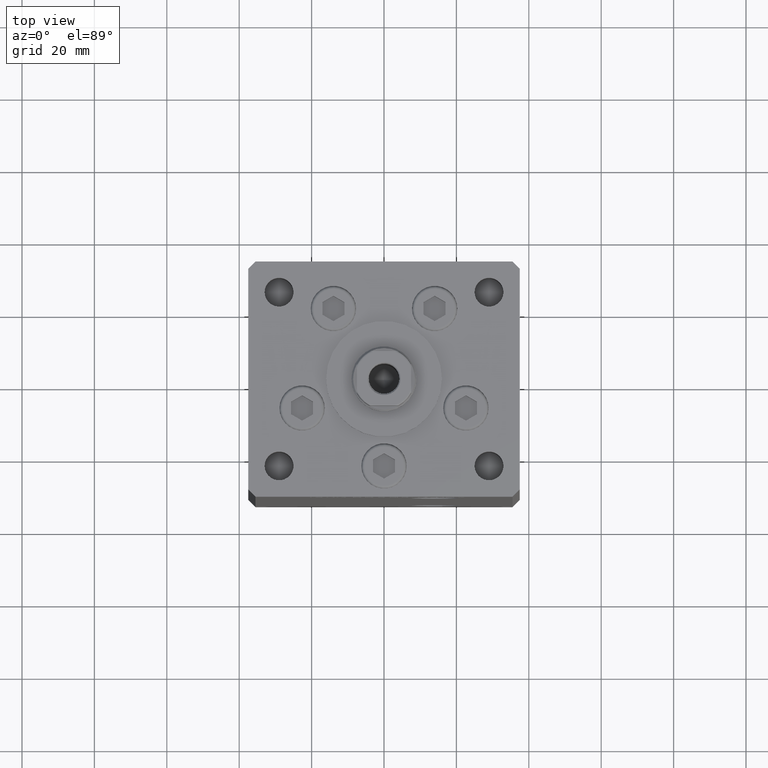
[diagram: clean part render]
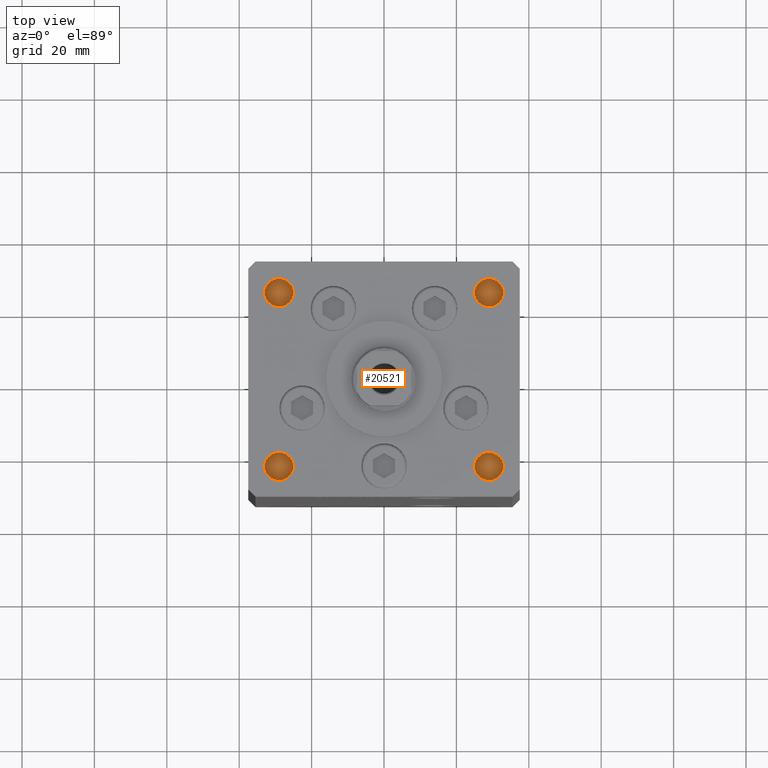
[diagram: same view with one face highlighted and labeled with its STEP entity id]
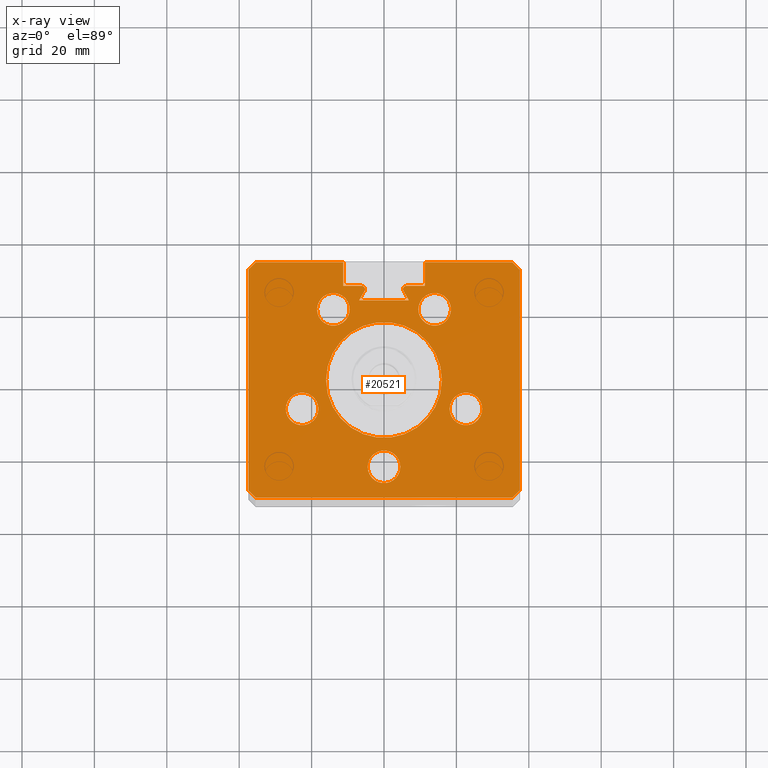
[diagram: x-ray of the same camera — body ghosted, the highlighted face saturated]
A machine part, top view. The second image highlights one B-rep face of the part: STEP entity #20521.
The next image is the same camera in x-ray: the body ghosted, the highlighted face saturated — about 0% of this face is hidden behind the body in this view.
In plain terms, the highlighted planar face has unit normal (0, 0, -1).
Its self-contained STEP definition (entity closure, byte-faithful):
#53 = DIRECTION ( 'NONE',  ( 1.000000000000000000, 0.000000000000000000, 0.000000000000000000 ) ) ;
#482 = DIRECTION ( 'NONE',  ( 1.000000000000000000, 0.000000000000000000, 0.000000000000000000 ) ) ;
#627 = LINE ( 'NONE', #16720, #37494 ) ;
#664 = ORIENTED_EDGE ( 'NONE', *, *, #14087, .F. ) ;
#794 = EDGE_CURVE ( 'NONE', #24559, #36442, #5708, .T. ) ;
#1055 = VERTEX_POINT ( 'NONE', #21488 ) ;
#1249 = EDGE_CURVE ( 'NONE', #27479, #21317, #3509, .T. ) ;
#1281 = DIRECTION ( 'NONE',  ( 1.000000000000000000, 0.000000000000000000, 0.000000000000000000 ) ) ;
#1651 = DIRECTION ( 'NONE',  ( 0.000000000000000000, 0.000000000000000000, -1.000000000000000000 ) ) ;
#1676 = FACE_BOUND ( 'NONE', #20004, .T. ) ;
#1789 = DIRECTION ( 'NONE',  ( -2.275047181608927644E-16, -1.000000000000000000, 0.000000000000000000 ) ) ;
#1837 = VECTOR ( 'NONE', #1789, 1000.000000000000000 ) ;
#1921 = VECTOR ( 'NONE', #41273, 1000.000000000000000 ) ;
#1927 = EDGE_CURVE ( 'NONE', #24559, #16770, #36311, .T. ) ;
#1969 = CARTESIAN_POINT ( 'NONE',  ( -35.49999999999999289, -32.50000000000000000, 136.0000000000000000 ) ) ;
#2026 = CIRCLE ( 'NONE', #45903, 4.499999999999997335 ) ;
#2070 = DIRECTION ( 'NONE',  ( -1.000000000000000000, 0.000000000000000000, 0.000000000000000000 ) ) ;
#2204 = FACE_BOUND ( 'NONE', #18133, .T. ) ;
#2223 = DIRECTION ( 'NONE',  ( 1.000000000000000000, 0.000000000000000000, 0.000000000000000000 ) ) ;
#2573 = DIRECTION ( 'NONE',  ( -0.7071067811865474617, -0.7071067811865474617, 0.000000000000000000 ) ) ;
#2605 = ORIENTED_EDGE ( 'NONE', *, *, #1927, .F. ) ;
#3509 = LINE ( 'NONE', #19870, #17910 ) ;
#3834 = CARTESIAN_POINT ( 'NONE',  ( -6.183333333334001480, 25.06666666666599141, 136.0000000000000000 ) ) ;
#3871 = LINE ( 'NONE', #16530, #19425 ) ;
#3873 = CARTESIAN_POINT ( 'NONE',  ( -6.876153656360466826, 21.99999999999986855, 136.0000000000000000 ) ) ;
#3987 = CARTESIAN_POINT ( 'NONE',  ( 11.24999999999999467, 32.49999999999999289, 136.0000000000000000 ) ) ;
#3990 = CARTESIAN_POINT ( 'NONE',  ( 18.12741699796951877, -8.000000000000000000, 136.0000000000000000 ) ) ;
#4031 = VERTEX_POINT ( 'NONE', #41045 ) ;
#4173 = DIRECTION ( 'NONE',  ( 0.000000000000000000, 0.000000000000000000, 1.000000000000000000 ) ) ;
#4209 = AXIS2_PLACEMENT_3D ( 'NONE', #38007, #50640, #50389 ) ;
#4671 = CARTESIAN_POINT ( 'NONE',  ( 18.49106857963322526, 19.50000000000000000, 136.0000000000000000 ) ) ;
#4936 = AXIS2_PLACEMENT_3D ( 'NONE', #14596, #46550, #5635 ) ;
#5047 = VERTEX_POINT ( 'NONE', #45756 ) ;
#5135 = DIRECTION ( 'NONE',  ( 1.000000000000000000, 0.000000000000000000, 0.000000000000000000 ) ) ;
#5179 = CIRCLE ( 'NONE', #32982, 16.00000000000000000 ) ;
#5635 = DIRECTION ( 'NONE',  ( -1.000000000000000000, 0.000000000000000000, -0.000000000000000000 ) ) ;
#5708 = LINE ( 'NONE', #9663, #11959 ) ;
#5963 = AXIS2_PLACEMENT_3D ( 'NONE', #51759, #15343, #50982 ) ;
#5988 = EDGE_CURVE ( 'NONE', #27479, #6865, #37061, .T. ) ;
#6287 = DIRECTION ( 'NONE',  ( -1.000000000000000000, 0.000000000000000000, 0.000000000000000000 ) ) ;
#6408 = FACE_BOUND ( 'NONE', #34272, .T. ) ;
#6469 = AXIS2_PLACEMENT_3D ( 'NONE', #15464, #7792, #5135 ) ;
#6517 = CARTESIAN_POINT ( 'NONE',  ( 37.49999999999999289, -30.50000000000000000, 136.0000000000000000 ) ) ;
#6636 = CARTESIAN_POINT ( 'NONE',  ( -6.183333333334001480, 25.06666666666599141, 136.0000000000000000 ) ) ;
#6865 = VERTEX_POINT ( 'NONE', #38379 ) ;
#6954 = VECTOR ( 'NONE', #15970, 1000.000000000000000 ) ;
#7187 = CARTESIAN_POINT ( 'NONE',  ( 35.49999999999999289, -32.50000000000000000, 136.0000000000000000 ) ) ;
#7264 = EDGE_CURVE ( 'NONE', #35152, #50964, #13794, .T. ) ;
#7512 = AXIS2_PLACEMENT_3D ( 'NONE', #33974, #33103, #48948 ) ;
#7694 = DIRECTION ( 'NONE',  ( 0.000000000000000000, 0.000000000000000000, 1.000000000000000000 ) ) ;
#7697 = DIRECTION ( 'NONE',  ( 1.000000000000000000, 0.000000000000000000, 0.000000000000000000 ) ) ;
#7745 = DIRECTION ( 'NONE',  ( 0.000000000000000000, 1.000000000000000000, 0.000000000000000000 ) ) ;
#7767 = DIRECTION ( 'NONE',  ( 1.000000000000000000, 0.000000000000000000, 0.000000000000000000 ) ) ;
#7792 = DIRECTION ( 'NONE',  ( 0.000000000000000000, 0.000000000000000000, 1.000000000000000000 ) ) ;
#7915 = EDGE_CURVE ( 'NONE', #9230, #25447, #23008, .T. ) ;
#8044 = AXIS2_PLACEMENT_3D ( 'NONE', #39928, #7694, #53 ) ;
#8064 = EDGE_CURVE ( 'NONE', #36442, #42253, #24193, .T. ) ;
#8217 = CARTESIAN_POINT ( 'NONE',  ( 22.62741699796951877, -8.000000000000000000, 136.0000000000000000 ) ) ;
#8345 = DIRECTION ( 'NONE',  ( -1.000000000000000000, 0.000000000000000000, 0.000000000000000000 ) ) ;
#8447 = CIRCLE ( 'NONE', #26985, 0.9333333333340008142 ) ;
#8715 = CARTESIAN_POINT ( 'NONE',  ( 22.62741699796951877, -8.000000000000000000, 136.0000000000000000 ) ) ;
#9230 = VERTEX_POINT ( 'NONE', #4671 ) ;
#9591 = ORIENTED_EDGE ( 'NONE', *, *, #794, .T. ) ;
#9598 = FACE_OUTER_BOUND ( 'NONE', #22910, .T. ) ;
#9663 = CARTESIAN_POINT ( 'NONE',  ( 11.25000000000000178, 0.000000000000000000, 136.0000000000000000 ) ) ;
#10257 = ORIENTED_EDGE ( 'NONE', *, *, #18100, .F. ) ;
#10316 = CARTESIAN_POINT ( 'NONE',  ( -37.49999999999999289, -30.50000000000000000, 136.0000000000000000 ) ) ;
#10609 = VERTEX_POINT ( 'NONE', #3990 ) ;
#11214 = LINE ( 'NONE', #43196, #48307 ) ;
#11959 = VECTOR ( 'NONE', #41627, 1000.000000000000000 ) ;
#12204 = EDGE_CURVE ( 'NONE', #10609, #27692, #34191, .T. ) ;
#12409 = ORIENTED_EDGE ( 'NONE', *, *, #13125, .T. ) ;
#12552 = DIRECTION ( 'NONE',  ( 2.275047181608927644E-16, -1.000000000000000000, 0.000000000000000000 ) ) ;
#12685 = EDGE_LOOP ( 'NONE', ( #664, #28046 ) ) ;
#12771 = EDGE_CURVE ( 'NONE', #33738, #38268, #50612, .T. ) ;
#13116 = AXIS2_PLACEMENT_3D ( 'NONE', #8217, #20373, #24324 ) ;
#13125 = EDGE_CURVE ( 'NONE', #50964, #19991, #18438, .T. ) ;
#13216 = VECTOR ( 'NONE', #2223, 1000.000000000000000 ) ;
#13460 = CARTESIAN_POINT ( 'NONE',  ( -22.62741699796951877, -8.000000000000000000, 136.0000000000000000 ) ) ;
#13656 = CARTESIAN_POINT ( 'NONE',  ( -6.183333333334001480, 25.99999999999999289, 136.0000000000000000 ) ) ;
#13667 = CARTESIAN_POINT ( 'NONE',  ( 13.99106857963322170, 19.50000000000000000, 136.0000000000000000 ) ) ;
#13682 = CARTESIAN_POINT ( 'NONE',  ( 0.000000000000000000, 25.99999999999999289, 136.0000000000000000 ) ) ;
#13777 = CIRCLE ( 'NONE', #44124, 4.500000000000000888 ) ;
#13794 = LINE ( 'NONE', #17236, #47473 ) ;
#13947 = ORIENTED_EDGE ( 'NONE', *, *, #21388, .F. ) ;
#14023 = VECTOR ( 'NONE', #6287, 1000.000000000000000 ) ;
#14087 = EDGE_CURVE ( 'NONE', #4031, #18446, #37662, .T. ) ;
#14246 = EDGE_CURVE ( 'NONE', #48904, #33368, #50772, .T. ) ;
#14327 = CIRCLE ( 'NONE', #4209, 0.9333333333340008142 ) ;
#14461 = EDGE_LOOP ( 'NONE', ( #17722, #19497 ) ) ;
#14573 = AXIS2_PLACEMENT_3D ( 'NONE', #13667, #25808, #1281 ) ;
#14596 = CARTESIAN_POINT ( 'NONE',  ( 0.000000000000000000, 0.000000000000000000, 136.0000000000000000 ) ) ;
#15038 = ORIENTED_EDGE ( 'NONE', *, *, #44142, .F. ) ;
#15343 = DIRECTION ( 'NONE',  ( 0.000000000000000000, 0.000000000000000000, 1.000000000000000000 ) ) ;
#15464 = CARTESIAN_POINT ( 'NONE',  ( -13.99106857963322170, 19.50000000000000000, 136.0000000000000000 ) ) ;
#15970 = DIRECTION ( 'NONE',  ( 1.000000000000000000, 0.000000000000000000, 0.000000000000000000 ) ) ;
#16277 = VECTOR ( 'NONE', #43062, 1000.000000000000114 ) ;
#16530 = CARTESIAN_POINT ( 'NONE',  ( -37.50000000000000711, 30.50000000000000000, 136.0000000000000000 ) ) ;
#16625 = ORIENTED_EDGE ( 'NONE', *, *, #51145, .F. ) ;
#16720 = CARTESIAN_POINT ( 'NONE',  ( -11.25000000000000178, 0.000000000000000000, 136.0000000000000000 ) ) ;
#16751 = CARTESIAN_POINT ( 'NONE',  ( -11.25000000000000178, 32.49999999999999289, 136.0000000000000000 ) ) ;
#16770 = VERTEX_POINT ( 'NONE', #26963 ) ;
#17236 = CARTESIAN_POINT ( 'NONE',  ( 14.68339468389911495, 8.477461873366666012, 136.0000000000000000 ) ) ;
#17300 = ORIENTED_EDGE ( 'NONE', *, *, #44714, .F. ) ;
#17722 = ORIENTED_EDGE ( 'NONE', *, *, #22835, .F. ) ;
#17741 = VERTEX_POINT ( 'NONE', #37527 ) ;
#17903 = LINE ( 'NONE', #21596, #1837 ) ;
#17910 = VECTOR ( 'NONE', #36771, 1000.000000000000114 ) ;
#18100 = EDGE_CURVE ( 'NONE', #5047, #24414, #47067, .T. ) ;
#18133 = EDGE_LOOP ( 'NONE', ( #44672, #41485 ) ) ;
#18438 = LINE ( 'NONE', #46171, #14023 ) ;
#18446 = VERTEX_POINT ( 'NONE', #51615 ) ;
#18458 = CARTESIAN_POINT ( 'NONE',  ( -35.49999999999999289, -32.50000000000000000, 136.0000000000000000 ) ) ;
#18459 = CARTESIAN_POINT ( 'NONE',  ( 6.183333333334001480, 25.99999999999999289, 136.0000000000000000 ) ) ;
#18554 = FACE_BOUND ( 'NONE', #12685, .T. ) ;
#18945 = ORIENTED_EDGE ( 'NONE', *, *, #38576, .T. ) ;
#19411 = DIRECTION ( 'NONE',  ( 0.4999999999999996114, 0.8660254037844388186, 0.000000000000000000 ) ) ;
#19425 = VECTOR ( 'NONE', #12552, 1000.000000000000000 ) ;
#19497 = ORIENTED_EDGE ( 'NONE', *, *, #52187, .F. ) ;
#19870 = CARTESIAN_POINT ( 'NONE',  ( -35.50000000000000000, 32.49999999999999289, 136.0000000000000000 ) ) ;
#19973 = CARTESIAN_POINT ( 'NONE',  ( 0.000000000000000000, 25.99999999999999289, 136.0000000000000000 ) ) ;
#19991 = VERTEX_POINT ( 'NONE', #3873 ) ;
#20004 = EDGE_LOOP ( 'NONE', ( #37732, #16625 ) ) ;
#20373 = DIRECTION ( 'NONE',  ( 0.000000000000000000, 0.000000000000000000, 1.000000000000000000 ) ) ;
#20521 = ADVANCED_FACE ( 'NONE', ( #41816, #6408, #2204, #1676, #18554, #9598, #34656 ), #21743, .F. ) ;
#20604 = AXIS2_PLACEMENT_3D ( 'NONE', #8715, #24825, #37238 ) ;
#21206 = CARTESIAN_POINT ( 'NONE',  ( -27.12741699796952233, -8.000000000000000000, 136.0000000000000000 ) ) ;
#21317 = VERTEX_POINT ( 'NONE', #49996 ) ;
#21388 = EDGE_CURVE ( 'NONE', #24414, #5047, #39533, .T. ) ;
#21449 = CARTESIAN_POINT ( 'NONE',  ( 6.876153656360466826, 21.99999999999986855, 136.0000000000000000 ) ) ;
#21488 = CARTESIAN_POINT ( 'NONE',  ( 37.50000000000000711, 30.50000000000000000, 136.0000000000000000 ) ) ;
#21596 = CARTESIAN_POINT ( 'NONE',  ( 37.50000000000000711, 30.50000000000000000, 136.0000000000000000 ) ) ;
#21654 = DIRECTION ( 'NONE',  ( 0.000000000000000000, 0.000000000000000000, 1.000000000000000000 ) ) ;
#21743 = PLANE ( 'NONE',  #4936 ) ;
#21961 = DIRECTION ( 'NONE',  ( 0.4999999999999996114, -0.8660254037844388186, 0.000000000000000000 ) ) ;
#22281 = CIRCLE ( 'NONE', #20604, 4.500000000000000888 ) ;
#22460 = VERTEX_POINT ( 'NONE', #49615 ) ;
#22835 = EDGE_CURVE ( 'NONE', #17741, #35406, #31985, .T. ) ;
#22910 = EDGE_LOOP ( 'NONE', ( #40670, #23254, #37609, #32227, #27200, #18945, #26014, #46568, #38335, #32922, #2605, #9591, #24104, #46983, #24155, #12409, #24299, #23966, #17300 ) ) ;
#23008 = CIRCLE ( 'NONE', #14573, 4.500000000000003553 ) ;
#23026 = CARTESIAN_POINT ( 'NONE',  ( -13.99106857963322170, 19.50000000000000000, 136.0000000000000000 ) ) ;
#23041 = CARTESIAN_POINT ( 'NONE',  ( 0.000000000000000000, -24.00000000000000000, 136.0000000000000000 ) ) ;
#23254 = ORIENTED_EDGE ( 'NONE', *, *, #43023, .T. ) ;
#23413 = CARTESIAN_POINT ( 'NONE',  ( 37.49999999999999289, -30.50000000000000000, 136.0000000000000000 ) ) ;
#23732 = DIRECTION ( 'NONE',  ( -0.000000000000000000, 0.000000000000000000, 1.000000000000000000 ) ) ;
#23966 = ORIENTED_EDGE ( 'NONE', *, *, #49716, .F. ) ;
#23990 = VECTOR ( 'NONE', #25801, 1000.000000000000114 ) ;
#24104 = ORIENTED_EDGE ( 'NONE', *, *, #8064, .T. ) ;
#24155 = ORIENTED_EDGE ( 'NONE', *, *, #7264, .T. ) ;
#24193 = LINE ( 'NONE', #19973, #43264 ) ;
#24299 = ORIENTED_EDGE ( 'NONE', *, *, #38063, .T. ) ;
#24324 = DIRECTION ( 'NONE',  ( 1.000000000000000000, 0.000000000000000000, 0.000000000000000000 ) ) ;
#24414 = VERTEX_POINT ( 'NONE', #40747 ) ;
#24559 = VERTEX_POINT ( 'NONE', #3987 ) ;
#24825 = DIRECTION ( 'NONE',  ( 0.000000000000000000, 0.000000000000000000, 1.000000000000000000 ) ) ;
#25447 = VERTEX_POINT ( 'NONE', #46522 ) ;
#25463 = CARTESIAN_POINT ( 'NONE',  ( -37.49999999999999289, -30.50000000000000000, 136.0000000000000000 ) ) ;
#25801 = DIRECTION ( 'NONE',  ( 0.7071067811865500152, -0.7071067811865451302, 0.000000000000000000 ) ) ;
#25808 = DIRECTION ( 'NONE',  ( 0.000000000000000000, 0.000000000000000000, 1.000000000000000000 ) ) ;
#26014 = ORIENTED_EDGE ( 'NONE', *, *, #14246, .T. ) ;
#26573 = CIRCLE ( 'NONE', #8044, 4.500000000000000888 ) ;
#26963 = CARTESIAN_POINT ( 'NONE',  ( 35.50000000000000000, 32.49999999999999289, 136.0000000000000000 ) ) ;
#26985 = AXIS2_PLACEMENT_3D ( 'NONE', #6636, #1651, #46261 ) ;
#26990 = DIRECTION ( 'NONE',  ( 0.000000000000000000, 0.000000000000000000, 1.000000000000000000 ) ) ;
#27200 = ORIENTED_EDGE ( 'NONE', *, *, #31328, .T. ) ;
#27479 = VERTEX_POINT ( 'NONE', #51809 ) ;
#27692 = VERTEX_POINT ( 'NONE', #45210 ) ;
#28046 = ORIENTED_EDGE ( 'NONE', *, *, #41315, .F. ) ;
#28341 = VECTOR ( 'NONE', #2070, 1000.000000000000000 ) ;
#28786 = VERTEX_POINT ( 'NONE', #43148 ) ;
#31328 = EDGE_CURVE ( 'NONE', #21317, #48524, #3871, .T. ) ;
#31647 = CARTESIAN_POINT ( 'NONE',  ( 0.000000000000000000, 0.000000000000000000, 136.0000000000000000 ) ) ;
#31985 = CIRCLE ( 'NONE', #7512, 16.00000000000000000 ) ;
#32227 = ORIENTED_EDGE ( 'NONE', *, *, #1249, .T. ) ;
#32922 = ORIENTED_EDGE ( 'NONE', *, *, #42496, .F. ) ;
#32982 = AXIS2_PLACEMENT_3D ( 'NONE', #31647, #23732, #39848 ) ;
#33103 = DIRECTION ( 'NONE',  ( -0.000000000000000000, 0.000000000000000000, 1.000000000000000000 ) ) ;
#33368 = VERTEX_POINT ( 'NONE', #7187 ) ;
#33374 = CARTESIAN_POINT ( 'NONE',  ( -11.25000000000000178, 25.99999999999999289, 136.0000000000000000 ) ) ;
#33738 = VERTEX_POINT ( 'NONE', #13656 ) ;
#33781 = CARTESIAN_POINT ( 'NONE',  ( -5.250000000000000000, 25.06666666666599141, 136.0000000000000000 ) ) ;
#33974 = CARTESIAN_POINT ( 'NONE',  ( 0.000000000000000000, 0.000000000000000000, 136.0000000000000000 ) ) ;
#33998 = EDGE_CURVE ( 'NONE', #1055, #40797, #17903, .T. ) ;
#34191 = CIRCLE ( 'NONE', #13116, 4.500000000000000888 ) ;
#34272 = EDGE_LOOP ( 'NONE', ( #10257, #13947 ) ) ;
#34656 = FACE_BOUND ( 'NONE', #14461, .T. ) ;
#34983 = CARTESIAN_POINT ( 'NONE',  ( 5.375042956467948052, 24.59999999999899245, 136.0000000000000000 ) ) ;
#35152 = VERTEX_POINT ( 'NONE', #34983 ) ;
#35406 = VERTEX_POINT ( 'NONE', #39152 ) ;
#36033 = DIRECTION ( 'NONE',  ( 0.000000000000000000, 0.000000000000000000, -1.000000000000000000 ) ) ;
#36311 = LINE ( 'NONE', #16751, #6954 ) ;
#36442 = VERTEX_POINT ( 'NONE', #51213 ) ;
#36771 = DIRECTION ( 'NONE',  ( -0.7071067811865500152, -0.7071067811865451302, 0.000000000000000000 ) ) ;
#37061 = LINE ( 'NONE', #49193, #1921 ) ;
#37238 = DIRECTION ( 'NONE',  ( 1.000000000000000000, 0.000000000000000000, 0.000000000000000000 ) ) ;
#37494 = VECTOR ( 'NONE', #7745, 1000.000000000000000 ) ;
#37527 = CARTESIAN_POINT ( 'NONE',  ( -16.00000000000000000, 0.000000000000000000, 136.0000000000000000 ) ) ;
#37609 = ORIENTED_EDGE ( 'NONE', *, *, #5988, .F. ) ;
#37662 = CIRCLE ( 'NONE', #6469, 4.499999999999997335 ) ;
#37699 = CARTESIAN_POINT ( 'NONE',  ( 35.50000000000000000, 32.49999999999999289, 136.0000000000000000 ) ) ;
#37732 = ORIENTED_EDGE ( 'NONE', *, *, #7915, .F. ) ;
#38007 = CARTESIAN_POINT ( 'NONE',  ( 6.183333333334001480, 25.06666666666599141, 136.0000000000000000 ) ) ;
#38023 = DIRECTION ( 'NONE',  ( 1.000000000000000000, 0.000000000000000000, 0.000000000000000000 ) ) ;
#38063 = EDGE_CURVE ( 'NONE', #19991, #22460, #11214, .T. ) ;
#38268 = VERTEX_POINT ( 'NONE', #33374 ) ;
#38335 = ORIENTED_EDGE ( 'NONE', *, *, #33998, .F. ) ;
#38379 = CARTESIAN_POINT ( 'NONE',  ( -11.25000000000000178, 32.49999999999999289, 136.0000000000000000 ) ) ;
#38406 = EDGE_LOOP ( 'NONE', ( #46821, #15038 ) ) ;
#38576 = EDGE_CURVE ( 'NONE', #48524, #48904, #42029, .T. ) ;
#39152 = CARTESIAN_POINT ( 'NONE',  ( 16.00000000000000000, 1.959434878635765131E-15, 136.0000000000000000 ) ) ;
#39479 = EDGE_CURVE ( 'NONE', #28786, #47214, #13777, .T. ) ;
#39533 = CIRCLE ( 'NONE', #42092, 4.500000000000000000 ) ;
#39848 = DIRECTION ( 'NONE',  ( 1.000000000000000000, 0.000000000000000000, 0.000000000000000000 ) ) ;
#39928 = CARTESIAN_POINT ( 'NONE',  ( -22.62741699796951877, -8.000000000000000000, 136.0000000000000000 ) ) ;
#40340 = AXIS2_PLACEMENT_3D ( 'NONE', #47988, #4173, #482 ) ;
#40670 = ORIENTED_EDGE ( 'NONE', *, *, #12771, .T. ) ;
#40747 = CARTESIAN_POINT ( 'NONE',  ( -4.500000000000000000, -24.00000000000000000, 136.0000000000000000 ) ) ;
#40797 = VERTEX_POINT ( 'NONE', #23413 ) ;
#41045 = CARTESIAN_POINT ( 'NONE',  ( -9.491068579633225255, 19.50000000000000000, 136.0000000000000000 ) ) ;
#41273 = DIRECTION ( 'NONE',  ( 1.000000000000000000, 0.000000000000000000, 0.000000000000000000 ) ) ;
#41315 = EDGE_CURVE ( 'NONE', #18446, #4031, #2026, .T. ) ;
#41485 = ORIENTED_EDGE ( 'NONE', *, *, #12204, .F. ) ;
#41627 = DIRECTION ( 'NONE',  ( -0.000000000000000000, -1.000000000000000000, 0.000000000000000000 ) ) ;
#41816 = FACE_BOUND ( 'NONE', #38406, .T. ) ;
#42029 = LINE ( 'NONE', #10316, #16277 ) ;
#42092 = AXIS2_PLACEMENT_3D ( 'NONE', #23041, #26990, #46555 ) ;
#42186 = EDGE_CURVE ( 'NONE', #27692, #10609, #22281, .T. ) ;
#42238 = VERTEX_POINT ( 'NONE', #33781 ) ;
#42253 = VERTEX_POINT ( 'NONE', #18459 ) ;
#42446 = LINE ( 'NONE', #6517, #45933 ) ;
#42496 = EDGE_CURVE ( 'NONE', #16770, #1055, #46133, .T. ) ;
#43023 = EDGE_CURVE ( 'NONE', #38268, #6865, #627, .T. ) ;
#43062 = DIRECTION ( 'NONE',  ( 0.7071067811865474617, -0.7071067811865474617, 0.000000000000000000 ) ) ;
#43148 = CARTESIAN_POINT ( 'NONE',  ( -18.12741699796951877, -8.000000000000000000, 136.0000000000000000 ) ) ;
#43196 = CARTESIAN_POINT ( 'NONE',  ( -14.68339468389911495, 8.477461873366666012, 136.0000000000000000 ) ) ;
#43264 = VECTOR ( 'NONE', #8345, 1000.000000000000000 ) ;
#43382 = EDGE_CURVE ( 'NONE', #40797, #33368, #42446, .T. ) ;
#44124 = AXIS2_PLACEMENT_3D ( 'NONE', #13460, #21654, #38023 ) ;
#44142 = EDGE_CURVE ( 'NONE', #47214, #28786, #26573, .T. ) ;
#44152 = DIRECTION ( 'NONE',  ( 0.000000000000000000, 0.000000000000000000, 1.000000000000000000 ) ) ;
#44672 = ORIENTED_EDGE ( 'NONE', *, *, #42186, .F. ) ;
#44714 = EDGE_CURVE ( 'NONE', #33738, #42238, #50184, .T. ) ;
#45210 = CARTESIAN_POINT ( 'NONE',  ( 27.12741699796952233, -8.000000000000000000, 136.0000000000000000 ) ) ;
#45756 = CARTESIAN_POINT ( 'NONE',  ( 4.500000000000000000, -24.00000000000000000, 136.0000000000000000 ) ) ;
#45903 = AXIS2_PLACEMENT_3D ( 'NONE', #23026, #44152, #7697 ) ;
#45933 = VECTOR ( 'NONE', #2573, 1000.000000000000114 ) ;
#46133 = LINE ( 'NONE', #37699, #23990 ) ;
#46171 = CARTESIAN_POINT ( 'NONE',  ( 0.000000000000000000, 21.99999999999986855, 136.0000000000000000 ) ) ;
#46261 = DIRECTION ( 'NONE',  ( 1.000000000000000000, 0.000000000000000000, 0.000000000000000000 ) ) ;
#46522 = CARTESIAN_POINT ( 'NONE',  ( 9.491068579633218150, 19.50000000000000000, 136.0000000000000000 ) ) ;
#46550 = DIRECTION ( 'NONE',  ( 0.000000000000000000, 0.000000000000000000, -1.000000000000000000 ) ) ;
#46555 = DIRECTION ( 'NONE',  ( 1.000000000000000000, 0.000000000000000000, 0.000000000000000000 ) ) ;
#46568 = ORIENTED_EDGE ( 'NONE', *, *, #43382, .F. ) ;
#46821 = ORIENTED_EDGE ( 'NONE', *, *, #39479, .F. ) ;
#46983 = ORIENTED_EDGE ( 'NONE', *, *, #48125, .F. ) ;
#47067 = CIRCLE ( 'NONE', #40340, 4.500000000000000000 ) ;
#47214 = VERTEX_POINT ( 'NONE', #21206 ) ;
#47473 = VECTOR ( 'NONE', #21961, 1000.000000000000000 ) ;
#47988 = CARTESIAN_POINT ( 'NONE',  ( 0.000000000000000000, -24.00000000000000000, 136.0000000000000000 ) ) ;
#48104 = CIRCLE ( 'NONE', #5963, 4.500000000000003553 ) ;
#48125 = EDGE_CURVE ( 'NONE', #35152, #42253, #14327, .T. ) ;
#48307 = VECTOR ( 'NONE', #19411, 1000.000000000000000 ) ;
#48524 = VERTEX_POINT ( 'NONE', #25463 ) ;
#48904 = VERTEX_POINT ( 'NONE', #18458 ) ;
#48948 = DIRECTION ( 'NONE',  ( 1.000000000000000000, 0.000000000000000000, 0.000000000000000000 ) ) ;
#49193 = CARTESIAN_POINT ( 'NONE',  ( -11.25000000000000178, 32.49999999999999289, 136.0000000000000000 ) ) ;
#49615 = CARTESIAN_POINT ( 'NONE',  ( -5.375042956467946276, 24.59999999999899245, 136.0000000000000000 ) ) ;
#49716 = EDGE_CURVE ( 'NONE', #42238, #22460, #8447, .T. ) ;
#49996 = CARTESIAN_POINT ( 'NONE',  ( -37.50000000000000711, 30.50000000000000000, 136.0000000000000000 ) ) ;
#50184 = CIRCLE ( 'NONE', #51857, 0.9333333333340008142 ) ;
#50389 = DIRECTION ( 'NONE',  ( 1.000000000000000000, 0.000000000000000000, 0.000000000000000000 ) ) ;
#50612 = LINE ( 'NONE', #13682, #28341 ) ;
#50640 = DIRECTION ( 'NONE',  ( 0.000000000000000000, 0.000000000000000000, -1.000000000000000000 ) ) ;
#50772 = LINE ( 'NONE', #1969, #13216 ) ;
#50964 = VERTEX_POINT ( 'NONE', #21449 ) ;
#50982 = DIRECTION ( 'NONE',  ( 1.000000000000000000, 0.000000000000000000, 0.000000000000000000 ) ) ;
#51145 = EDGE_CURVE ( 'NONE', #25447, #9230, #48104, .T. ) ;
#51213 = CARTESIAN_POINT ( 'NONE',  ( 11.25000000000000178, 25.99999999999999289, 136.0000000000000000 ) ) ;
#51615 = CARTESIAN_POINT ( 'NONE',  ( -18.49106857963321815, 19.50000000000000000, 136.0000000000000000 ) ) ;
#51759 = CARTESIAN_POINT ( 'NONE',  ( 13.99106857963322170, 19.50000000000000000, 136.0000000000000000 ) ) ;
#51809 = CARTESIAN_POINT ( 'NONE',  ( -35.50000000000000000, 32.49999999999999289, 136.0000000000000000 ) ) ;
#51857 = AXIS2_PLACEMENT_3D ( 'NONE', #3834, #36033, #7767 ) ;
#52187 = EDGE_CURVE ( 'NONE', #35406, #17741, #5179, .T. ) ;